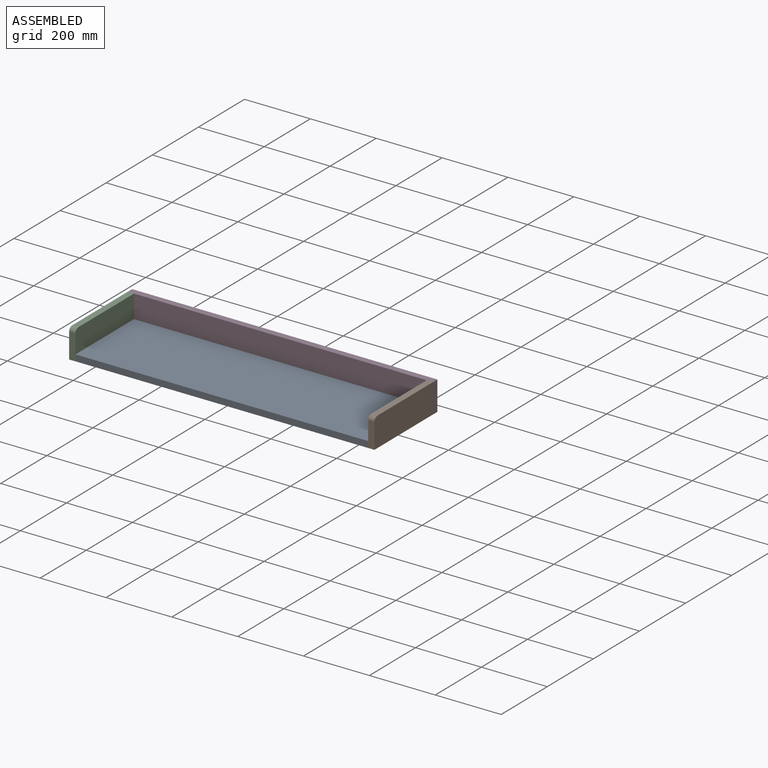
[diagram: assembled view]
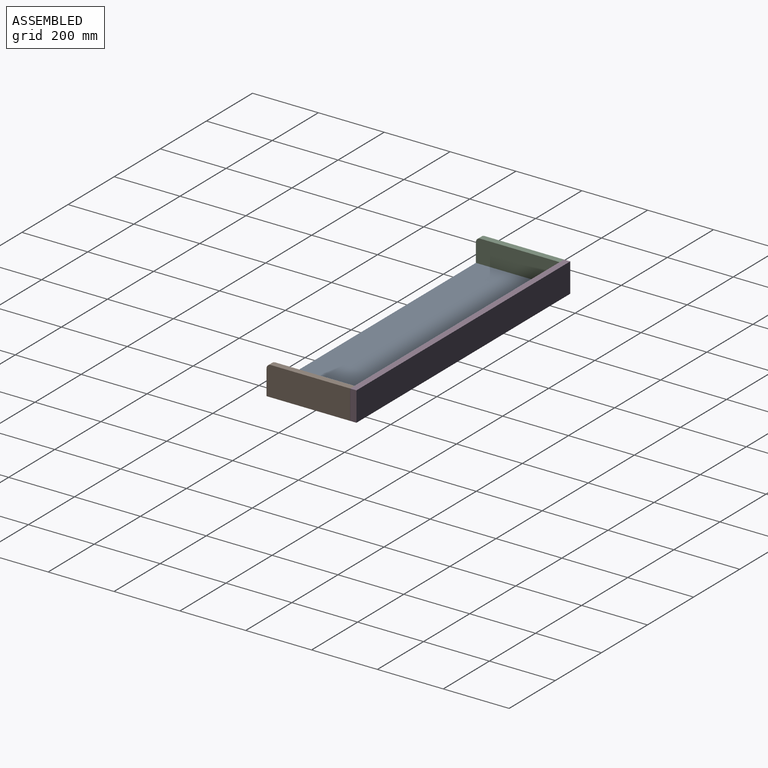
[diagram: assembled view, second angle]
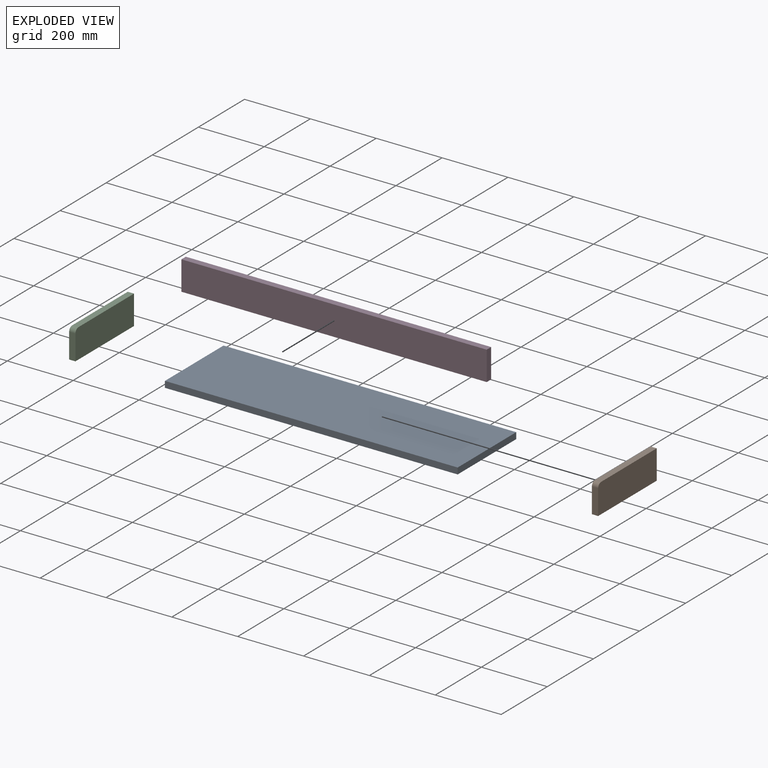
[diagram: exploded view]
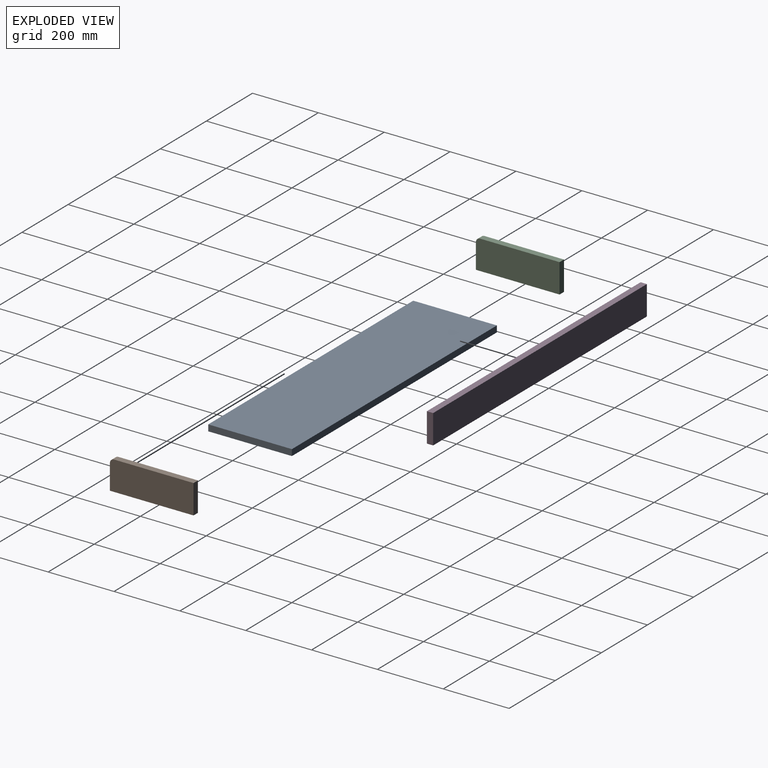
[diagram: exploded view, second angle]
ASSEMBLY  parts=4 mates=3
PART A: 6 faces, bbox 889x254x19.1 mm
  f0: plane 889x19.05mm, normal (0,1,0), area 16935.5mm2, adj f1,f3,f4,f5
  f1: plane 254x19.05mm, normal (-1,0,0), area 4838.7mm2, adj f0,f2,f4,f5
  f2: plane 889x19.05mm, normal (0,-1,0), area 16935.5mm2, adj f1,f3,f4,f5
  f3: plane 254x19.05mm, normal (1,0,0), area 4838.7mm2, adj f0,f2,f4,f5
  f4: plane 889x254mm, normal (0,0,1), area 225806mm2, adj f0,f1,f2,f3
  f5: plane 889x254mm, normal (0,0,-1), area 225806mm2, adj f0,f1,f2,f3
PART B: 7 faces, bbox 19.1x254x88.9 mm
  f0: plane 241.3x19.05mm, normal (0,0,1), area 4596.8mm2, adj f1,f4,f5,f6
  f1: cylinder r=12.7mm len=19.05mm, axis (-1,0,0), area 380mm2, adj f0,f2,f5,f6
  f2: plane 76.2x19.05mm, normal (0,-1,0), area 1451.6mm2, adj f1,f3,f5,f6
  f3: plane 254x19.05mm, normal (0,0,-1), area 4838.7mm2, adj f2,f4,f5,f6
  f4: plane 88.9x19.05mm, normal (0,1,0), area 1693.5mm2, adj f0,f3,f5,f6
  f5: plane 254x88.9mm, normal (1,0,0), area 22546mm2, adj f0,f1,f2,f3,f4
  f6: plane 254x88.9mm, normal (-1,0,0), area 22546mm2, adj f0,f1,f2,f3,f4
PART C: same geometry as B
PART D: 6 faces, bbox 19.1x927.1x88.9 mm
  f0: plane 927.1x19.05mm, normal (0,0,1), area 17661.3mm2, adj f1,f3,f4,f5
  f1: plane 88.9x19.05mm, normal (0,-1,0), area 1693.5mm2, adj f0,f2,f4,f5
  f2: plane 927.1x19.05mm, normal (0,0,-1), area 17661.3mm2, adj f1,f3,f4,f5
  f3: plane 88.9x19.05mm, normal (0,1,0), area 1693.5mm2, adj f0,f2,f4,f5
  f4: plane 927.1x88.9mm, normal (1,0,0), area 82419.2mm2, adj f0,f1,f2,f3
  f5: plane 927.1x88.9mm, normal (-1,0,0), area 82419.2mm2, adj f0,f1,f2,f3
PLACE A t=(-41.73,69.59,-49.16)mm fixed
PLACE B t=(847.27,69.59,-49.16)mm
PLACE C t=(-60.78,69.59,-49.16)mm
PLACE D rot(axis=(0.71,0.71,0),180deg) t=(-60.78,323.59,39.74)mm
MATE fastened A.f3 <-> B.f6  axis (1,0,0) through (847.27,69.59,-49.16)mm
MATE fastened D.f5 <-> A.f0  axis (0,-1,0) through (402.77,323.59,-49.16)mm
MATE fastened C.f5 <-> A.f1  axis (1,0,0) through (-41.73,69.59,-49.16)mm
